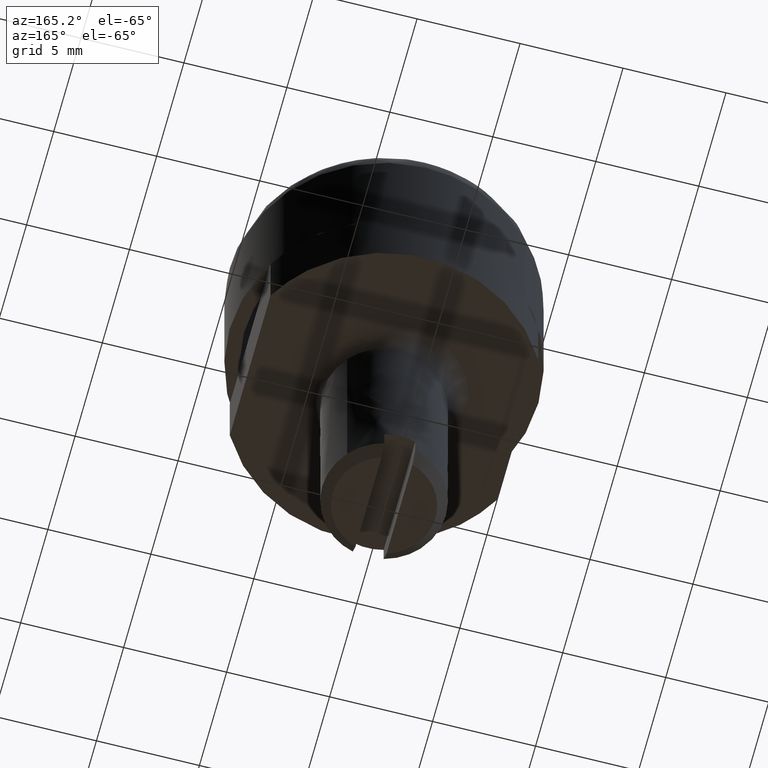
[diagram: clean part render]
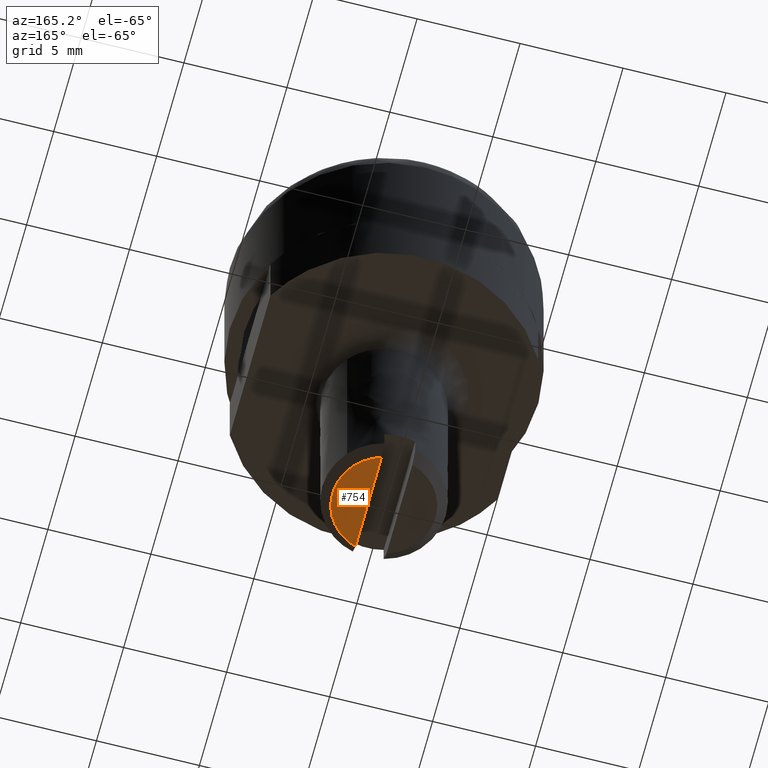
[diagram: same view with one face highlighted and labeled with its STEP entity id]
A machine part, auxiliary view. The second image highlights one B-rep face of the part: STEP entity #754.
In plain terms, the highlighted face is a freeform B-spline surface patch.
Its self-contained STEP definition (entity closure, byte-faithful):
#700=CARTESIAN_POINT('',(0.750000000000000,-2.384848003542226,-15.500000000000000));
#701=VERTEX_POINT('',#700);
#709=CARTESIAN_POINT('',(0.750000000000000,2.384848003542226,-15.500000000000000));
#710=VERTEX_POINT('',#709);
#711=CARTESIAN_POINT('',(0.750000000000000,2.384848003542226,-15.500000000000000));
#712=CARTESIAN_POINT('',(0.946597623365773,2.323072140007440,-15.499999999999959));
#713=CARTESIAN_POINT('',(1.271450398097707,2.174650216275884,-15.500000000000080));
#714=CARTESIAN_POINT('',(1.702591771923371,1.852977874256665,-15.499999999999950));
#715=CARTESIAN_POINT('',(2.057281819263719,1.458245931378601,-15.500000000000011));
#716=CARTESIAN_POINT('',(2.306035531167635,1.007680335288381,-15.500000000000011));
#717=CARTESIAN_POINT('',(2.448262974734077,0.558326760521644,-15.499999999999989));
#718=CARTESIAN_POINT('',(2.514509874651851,0.099851394567466,-15.500000000000041));
#719=CARTESIAN_POINT('',(2.489244640642936,-0.364043864972824,-15.499999999999950));
#720=CARTESIAN_POINT('',(2.388012693523963,-0.764891496719320,-15.500000000000041));
#721=CARTESIAN_POINT('',(2.249948777437696,-1.109762432606604,-15.499999999999970));
#722=CARTESIAN_POINT('',(2.075970157780056,-1.410657752923067,-15.500000000000000));
#723=CARTESIAN_POINT('',(1.842941338560971,-1.700244456048958,-15.500000000000000));
#724=CARTESIAN_POINT('',(1.573364786720695,-1.956330272710766,-15.500000000000080));
#725=CARTESIAN_POINT('',(1.211719927744071,-2.204497602432824,-15.499999999999680));
#726=CARTESIAN_POINT('',(0.915136388563509,-2.332944910442620,-15.500000000000540));
#727=CARTESIAN_POINT('',(0.750000000000000,-2.384848003542226,-15.500000000000000));
#728=B_SPLINE_CURVE_WITH_KNOTS('',3,(#711,#712,#713,#714,#715,#716,#717,#718,#719,#720,#721,#722,#723,#724,#725,#726,#727),.UNSPECIFIED.,.F.,.U.,(4,1,1,1,1,1,1,1,1,1,1,1,1,1,4),(0.000000059930081,0.618214932268805,1.063332259143914,1.607365437605598,2.200860593443113,2.596525097918129,3.016916539963157,3.585656462976384,3.981317911466765,4.253328563719197,4.698450422624219,5.019925582193926,5.366134017338608,5.811246001249143,6.330544170517530),.UNSPECIFIED.);
#729=EDGE_CURVE('',#710,#701,#728,.T.);
#741=CARTESIAN_POINT('',(2.587402541392788,-2.623094309851497,-15.500000000000000));
#742=CARTESIAN_POINT('',(0.662587930059552,-2.623094309851497,-15.500000000000000));
#743=CARTESIAN_POINT('',(2.587402541392788,2.623094437784713,-15.500000000000000));
#744=CARTESIAN_POINT('',(0.662587930059552,2.623094437784713,-15.500000000000000));
#745=B_SPLINE_SURFACE_WITH_KNOTS('',1,1,((#741,#743),(#742,#744)),.UNSPECIFIED.,.F.,.F.,.U.,(2,2),(2,2),(0.0,1.924814611333237),(0.0,5.246188747636211),.UNSPECIFIED.);
#746=ORIENTED_EDGE('',*,*,#729,.T.);
#747=CARTESIAN_POINT('',(0.750000000000000,2.384848003542226,-15.500000000000000));
#748=CARTESIAN_POINT('',(0.750000000000000,-2.384848003542226,-15.500000000000000));
#749=QUASI_UNIFORM_CURVE('',1,(#747,#748),.UNSPECIFIED.,.F.,.U.);
#750=EDGE_CURVE('',#710,#701,#749,.T.);
#751=ORIENTED_EDGE('',*,*,#750,.F.);
#752=EDGE_LOOP('',(#746,#751));
#753=FACE_OUTER_BOUND('',#752,.T.);
#754=ADVANCED_FACE('',(#753),#745,.T.);